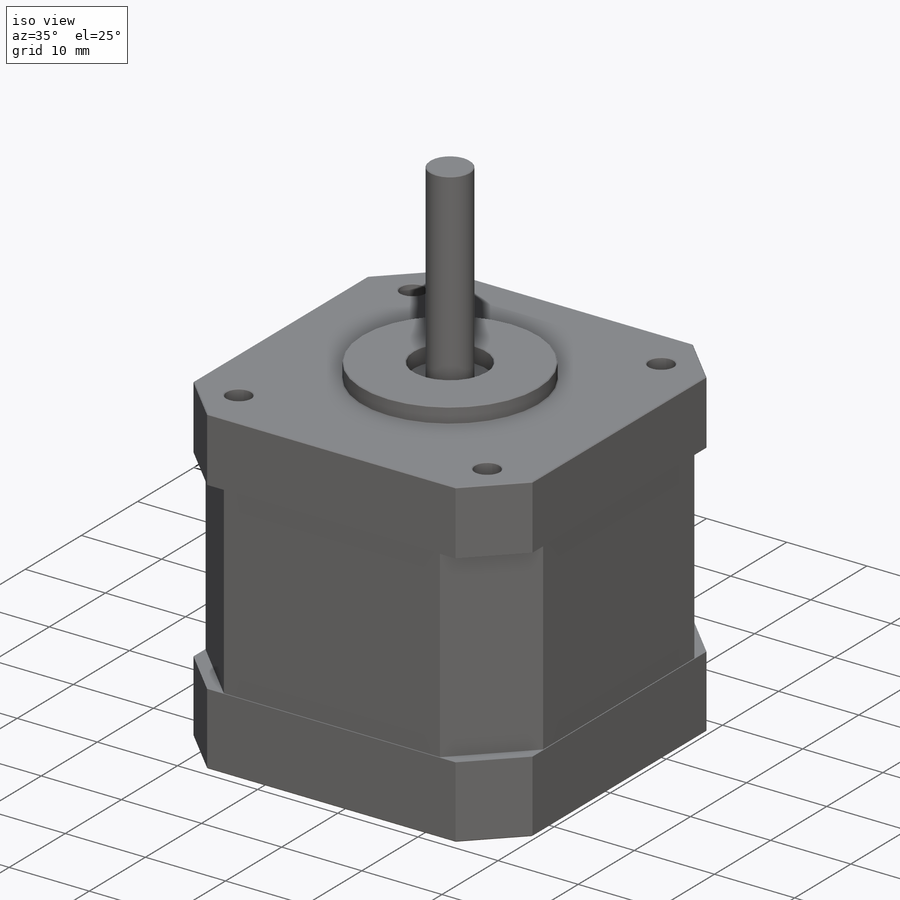
[diagram: iso view]
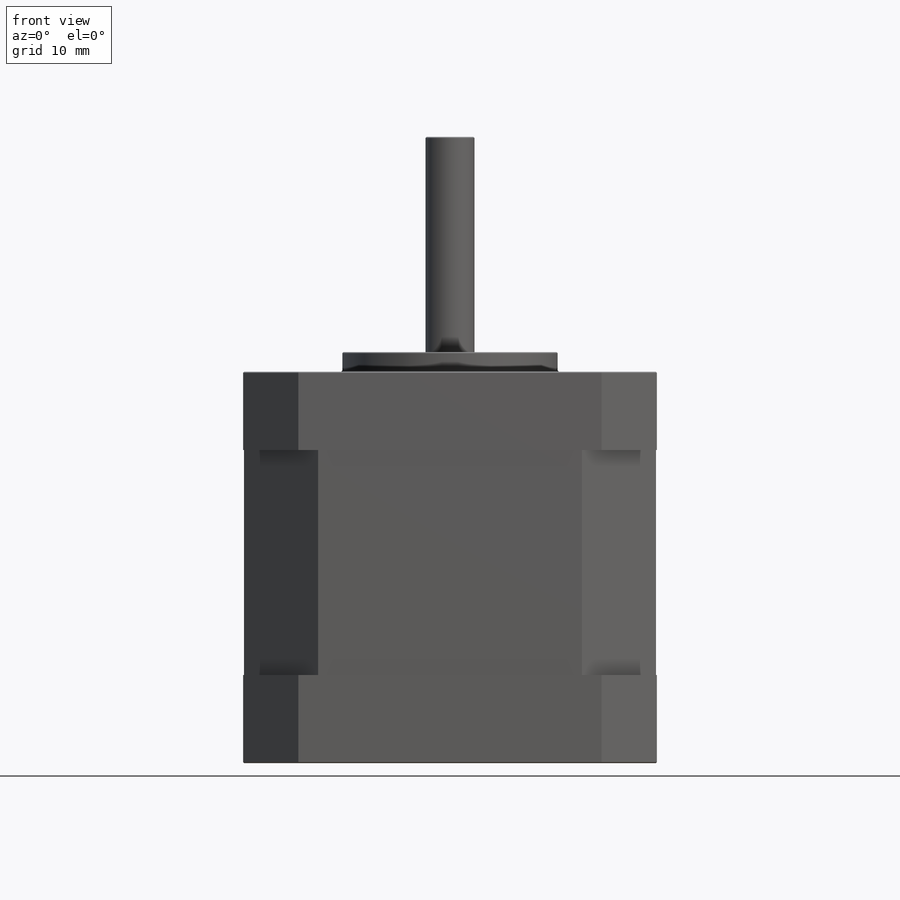
[diagram: front view]
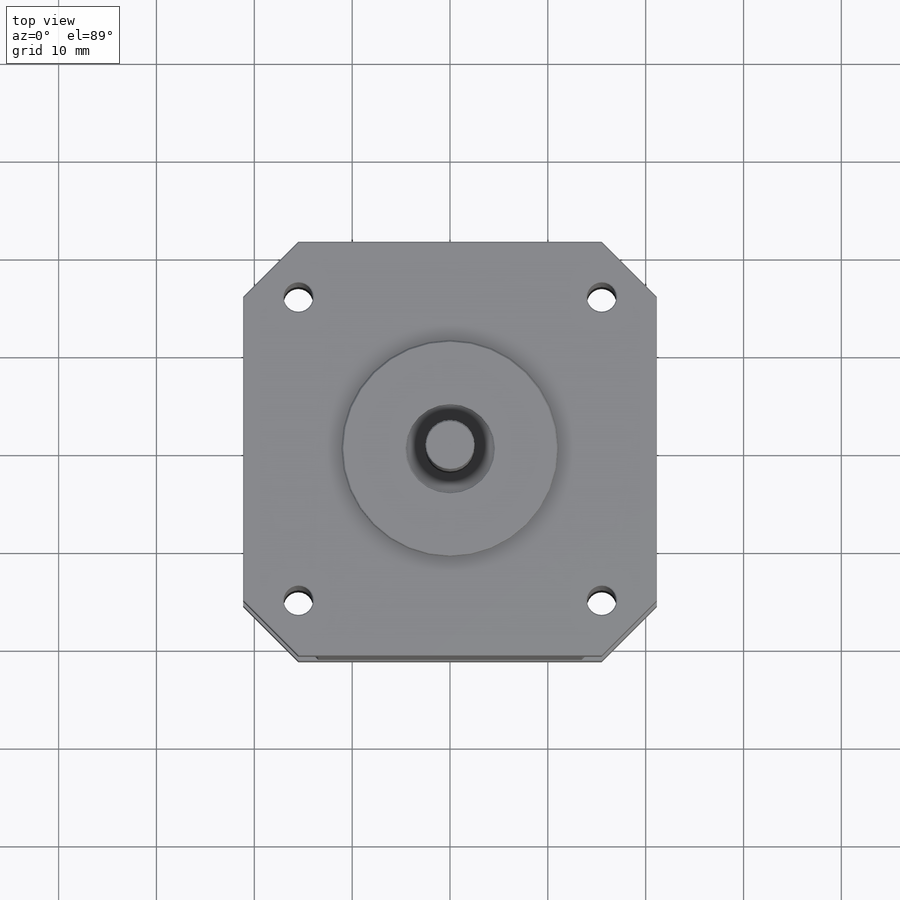
[diagram: top view]
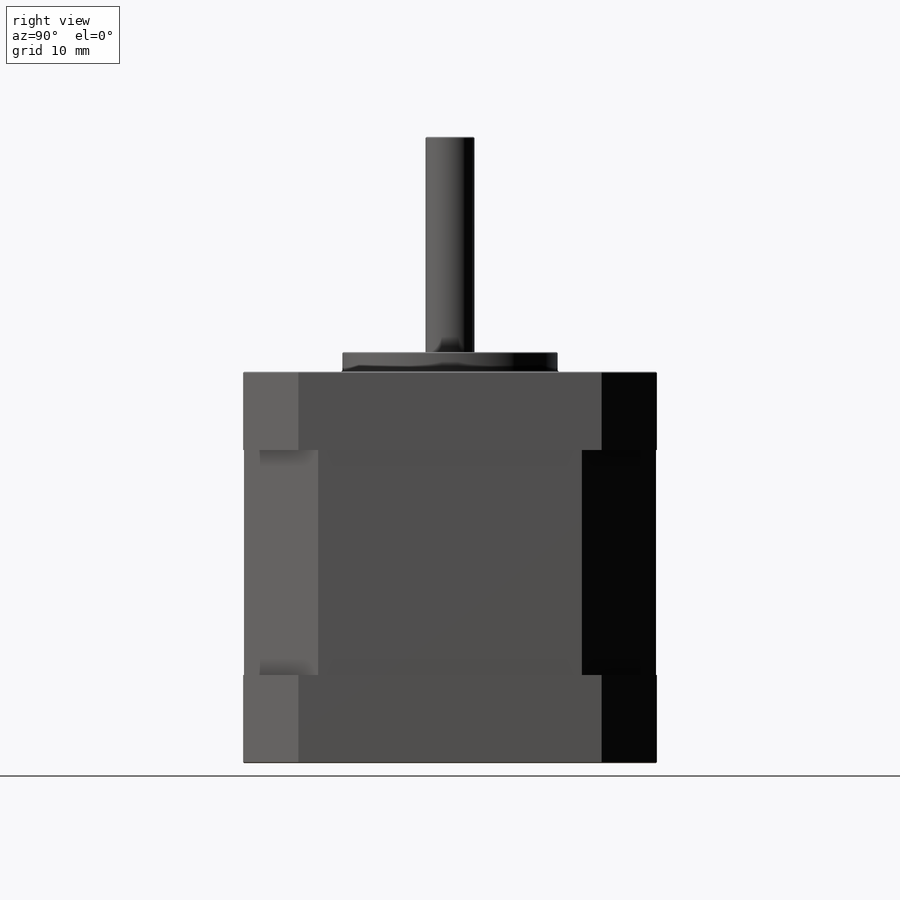
[diagram: right view]
SOLIDWORKS PART (.sldprt)
format: sldprt  version: not decoded by parser v0  size: 416,256 bytes
history: native  units: mm
features: sketch x5, extrude x5, material x1, chamfer x1 (+13 scaffold rows collapsed)
feature tree (25):
  scaffold x13  (default folders/planes/origin — collapsed)
  material  "Material <not specified>"
  sketch  "Sketch1"  dims[c1.D3=3.0mm c1.D1=42.3mm c1.D2=31.0mm c2.D1=42.3mm]
  extrude  "Boss-Extrude1"  Depth=9mm
  sketch  "Sketch4"  dims[D2=1.5mm D1=0.1mm D3=4.0]
  extrude  "Boss-Extrude4"  Depth=23mm
  sketch  "Sketch5"  dims[D1=0.0mm]
  extrude  "Boss-Extrude6"  Depth=8mm
  sketch  "Sketch2"  dims[D1=22.0mm D2=9.0mm]
  extrude  "Boss-Extrude2"  Depth=2mm
  sketch  "Sketch3"  dims[D1=5.0mm]
  extrude  "Boss-Extrude3"  Depth=22mm
  chamfer  "Chamfer1"  Distance=0.1mm Angle=45deg
decode coverage: 11 of 11 modeling features carry decoded parameters
note: suppression state not decoded; provenance and decode notes live in map.json
